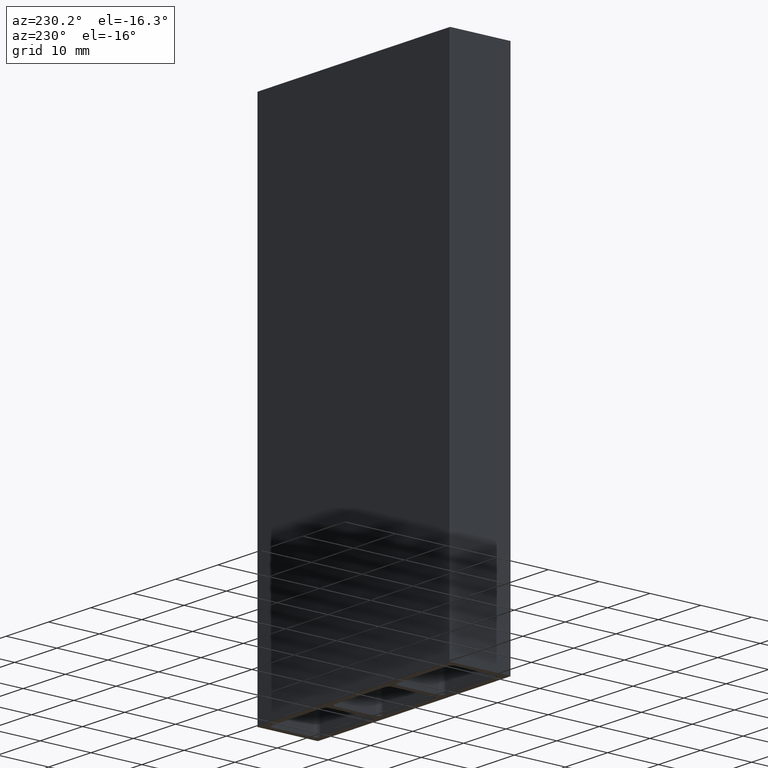
[diagram: clean part render]
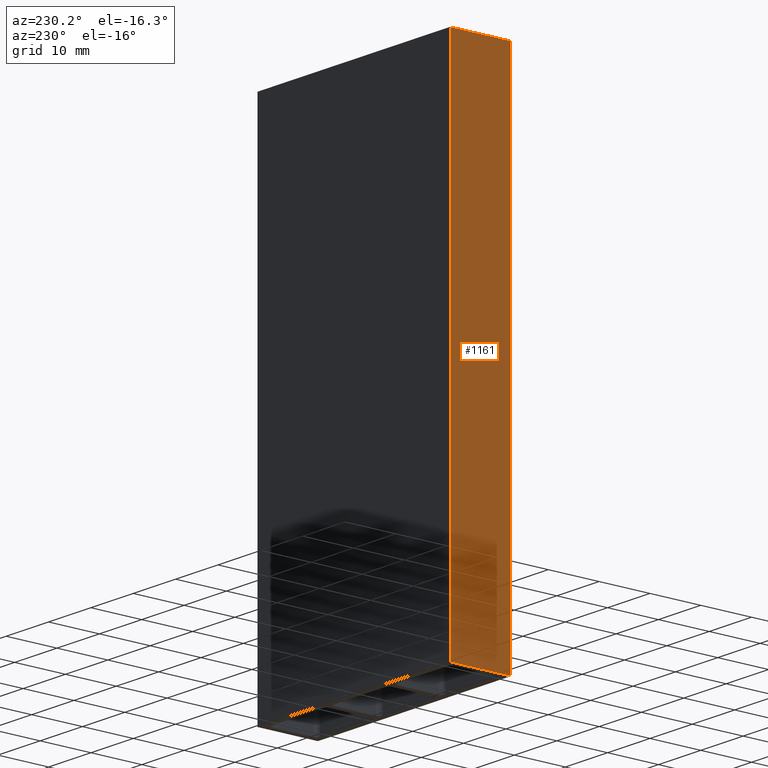
[diagram: same view with one face highlighted and labeled with its STEP entity id]
A machine part, auxiliary view. The second image highlights one B-rep face of the part: STEP entity #1161.
In plain terms, the highlighted planar face has unit normal (1, 0, -0).
Its self-contained STEP definition (entity closure, byte-faithful):
#50 = DIRECTION ( 'NONE',  ( 0.0000000000000000000, -0.0000000000000000000, 1.000000000000000000 ) ) ;
#58 = ORIENTED_EDGE ( 'NONE', *, *, #803, .T. ) ;
#130 = EDGE_CURVE ( 'NONE', #612, #654, #1145, .T. ) ;
#182 = CARTESIAN_POINT ( 'NONE',  ( -7.999999999999998200, -5.800000000000002500, 50.00000000000000000 ) ) ;
#217 = EDGE_LOOP ( 'NONE', ( #58, #1068, #430, #1090 ) ) ;
#233 = DIRECTION ( 'NONE',  ( 1.445602896647339200E-016, -1.000000000000000000, 0.0000000000000000000 ) ) ;
#244 = DIRECTION ( 'NONE',  ( 1.000000000000000000, 1.445602896647339400E-016, -0.0000000000000000000 ) ) ;
#246 = CARTESIAN_POINT ( 'NONE',  ( -8.000000000000000000, 5.799999999999999800, 50.00000000000000000 ) ) ;
#318 = DIRECTION ( 'NONE',  ( 0.0000000000000000000, 0.0000000000000000000, -1.000000000000000000 ) ) ;
#385 = EDGE_CURVE ( 'NONE', #514, #654, #493, .T. ) ;
#430 = ORIENTED_EDGE ( 'NONE', *, *, #130, .F. ) ;
#491 = CARTESIAN_POINT ( 'NONE',  ( -7.999999999999998200, -5.800000000000002500, 50.00000000000000000 ) ) ;
#493 = LINE ( 'NONE', #182, #880 ) ;
#514 = VERTEX_POINT ( 'NONE', #750 ) ;
#523 = PLANE ( 'NONE',  #538 ) ;
#535 = LINE ( 'NONE', #905, #1020 ) ;
#538 = AXIS2_PLACEMENT_3D ( 'NONE', #807, #244, #899 ) ;
#612 = VERTEX_POINT ( 'NONE', #708 ) ;
#654 = VERTEX_POINT ( 'NONE', #491 ) ;
#708 = CARTESIAN_POINT ( 'NONE',  ( -8.000000000000000000, 5.799999999999999800, 50.00000000000000000 ) ) ;
#750 = CARTESIAN_POINT ( 'NONE',  ( -7.999999999999998200, -5.800000000000002500, -50.00000000000000000 ) ) ;
#803 = EDGE_CURVE ( 'NONE', #1029, #514, #535, .T. ) ;
#807 = CARTESIAN_POINT ( 'NONE',  ( -8.000000000000000000, 5.999999999999999100, 50.00000000000000000 ) ) ;
#849 = CARTESIAN_POINT ( 'NONE',  ( -8.000000000000000000, 5.799999999999999800, -50.00000000000000000 ) ) ;
#868 = LINE ( 'NONE', #246, #942 ) ;
#880 = VECTOR ( 'NONE', #50, 1000.000000000000000 ) ;
#894 = VECTOR ( 'NONE', #960, 1000.000000000000000 ) ;
#899 = DIRECTION ( 'NONE',  ( -1.445602896647339400E-016, 1.000000000000000000, 0.0000000000000000000 ) ) ;
#905 = CARTESIAN_POINT ( 'NONE',  ( -8.000000000000000000, 5.999999999999999100, -50.00000000000000000 ) ) ;
#942 = VECTOR ( 'NONE', #318, 1000.000000000000000 ) ;
#960 = DIRECTION ( 'NONE',  ( 1.445602896647339200E-016, -1.000000000000000000, 0.0000000000000000000 ) ) ;
#969 = FACE_OUTER_BOUND ( 'NONE', #217, .T. ) ;
#994 = CARTESIAN_POINT ( 'NONE',  ( -8.000000000000000000, 5.999999999999999100, 50.00000000000000000 ) ) ;
#1020 = VECTOR ( 'NONE', #233, 1000.000000000000000 ) ;
#1029 = VERTEX_POINT ( 'NONE', #849 ) ;
#1068 = ORIENTED_EDGE ( 'NONE', *, *, #385, .T. ) ;
#1090 = ORIENTED_EDGE ( 'NONE', *, *, #1155, .T. ) ;
#1145 = LINE ( 'NONE', #994, #894 ) ;
#1155 = EDGE_CURVE ( 'NONE', #612, #1029, #868, .T. ) ;
#1161 = ADVANCED_FACE ( 'NONE', ( #969 ), #523, .F. ) ;